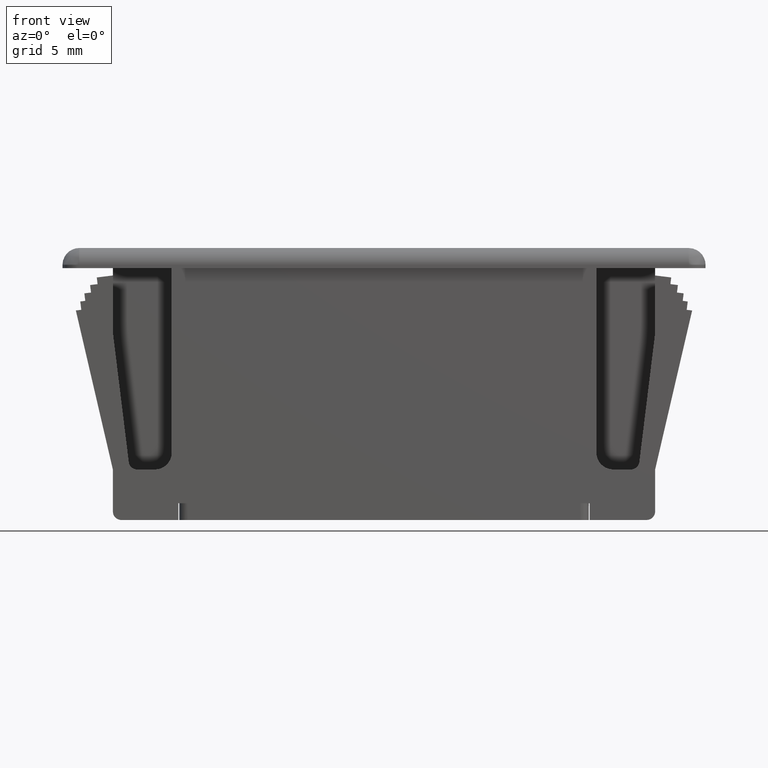
[diagram: clean part render]
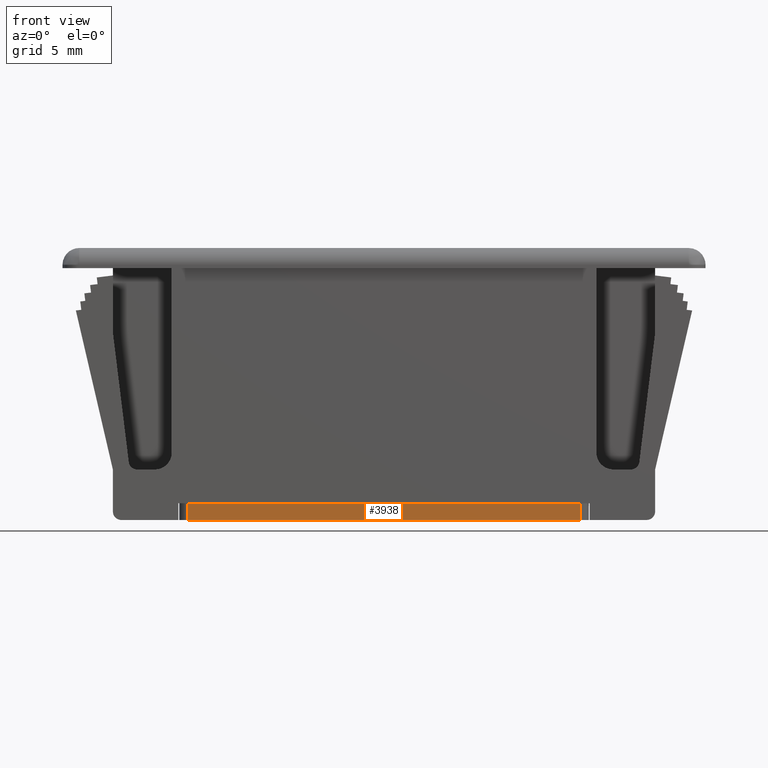
[diagram: same view with one face highlighted and labeled with its STEP entity id]
A machine part, front view. The second image highlights one B-rep face of the part: STEP entity #3938.
In plain terms, the highlighted face is a freeform B-spline surface patch.
Its self-contained STEP definition (entity closure, byte-faithful):
#3631=CARTESIAN_POINT('',(-11.699999999999999,-5.499999999961320,-15.199999999999999));
#3632=VERTEX_POINT('',#3631);
#3653=CARTESIAN_POINT('',(-11.699999999999999,-5.499999999961320,-16.199999999999999));
#3654=VERTEX_POINT('',#3653);
#3668=CARTESIAN_POINT('',(-11.699999999999999,-5.499999999961320,-15.199999999999999));
#3669=CARTESIAN_POINT('',(-11.699999999999999,-5.499999999961320,-16.199999999999999));
#3670=QUASI_UNIFORM_CURVE('',1,(#3668,#3669),.UNSPECIFIED.,.F.,.U.);
#3671=EDGE_CURVE('',#3632,#3654,#3670,.T.);
#3690=CARTESIAN_POINT('',(11.699999999999759,-5.499999999961320,-15.199999999999999));
#3691=VERTEX_POINT('',#3690);
#3707=CARTESIAN_POINT('',(11.699999999999759,-5.499999999961320,-16.199999999999999));
#3708=VERTEX_POINT('',#3707);
#3709=CARTESIAN_POINT('',(11.699999999999759,-5.499999999961320,-16.199999999999999));
#3710=CARTESIAN_POINT('',(11.699999999999759,-5.499999999961320,-15.199999999999999));
#3711=QUASI_UNIFORM_CURVE('',1,(#3709,#3710),.UNSPECIFIED.,.F.,.U.);
#3712=EDGE_CURVE('',#3708,#3691,#3711,.T.);
#3876=CARTESIAN_POINT('',(-11.699999999999999,-5.499999999961320,-15.199999999999999));
#3877=CARTESIAN_POINT('',(11.699999999999759,-5.499999999961320,-15.199999999999999));
#3878=QUASI_UNIFORM_CURVE('',1,(#3876,#3877),.UNSPECIFIED.,.F.,.U.);
#3879=EDGE_CURVE('',#3632,#3691,#3878,.T.);
#3923=CARTESIAN_POINT('',(-12.868829954646250,-5.499999999961320,-16.249949998061808));
#3924=CARTESIAN_POINT('',(-12.868829954646250,-5.499999999961320,-15.150049975116101));
#3925=CARTESIAN_POINT('',(12.868830582282920,-5.499999999961320,-16.249949998061808));
#3926=CARTESIAN_POINT('',(12.868830582282920,-5.499999999961320,-15.150049975116101));
#3927=B_SPLINE_SURFACE_WITH_KNOTS('',1,1,((#3923,#3925),(#3924,#3926)),.UNSPECIFIED.,.F.,.F.,.U.,(2,2),(2,2),(0.041708334948495,0.958291687403247),(0.0,25.737660536929170),.UNSPECIFIED.);
#3928=CARTESIAN_POINT('',(-11.699999999999999,-5.499999999961320,-16.199999999999999));
#3929=CARTESIAN_POINT('',(11.699999999999759,-5.499999999961320,-16.199999999999999));
#3930=QUASI_UNIFORM_CURVE('',1,(#3928,#3929),.UNSPECIFIED.,.F.,.U.);
#3931=EDGE_CURVE('',#3654,#3708,#3930,.T.);
#3932=ORIENTED_EDGE('',*,*,#3931,.T.);
#3933=ORIENTED_EDGE('',*,*,#3712,.T.);
#3934=ORIENTED_EDGE('',*,*,#3879,.F.);
#3935=ORIENTED_EDGE('',*,*,#3671,.T.);
#3936=EDGE_LOOP('',(#3932,#3933,#3934,#3935));
#3937=FACE_OUTER_BOUND('',#3936,.T.);
#3938=ADVANCED_FACE('',(#3937),#3927,.F.);